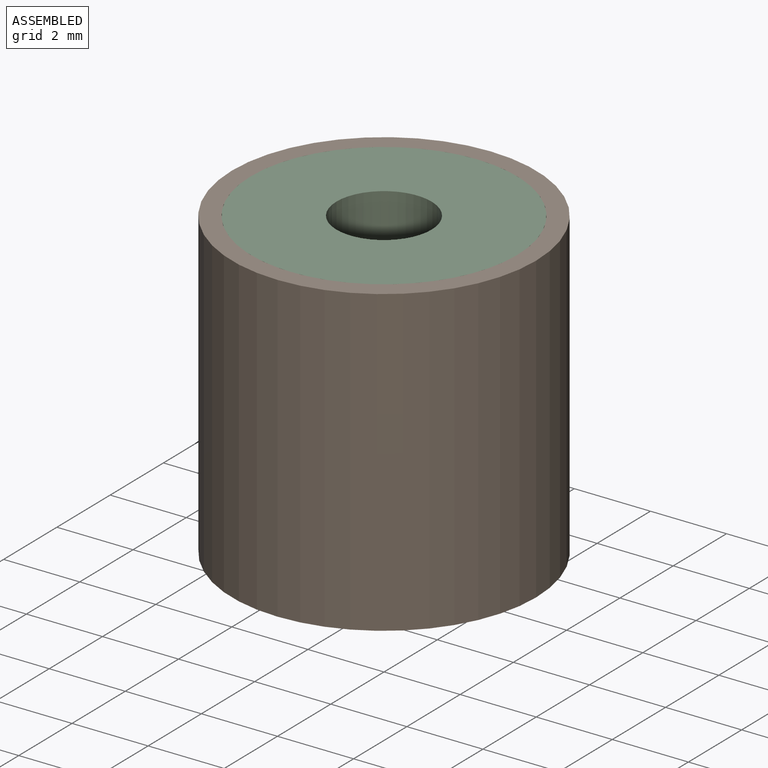
[diagram: assembled view]
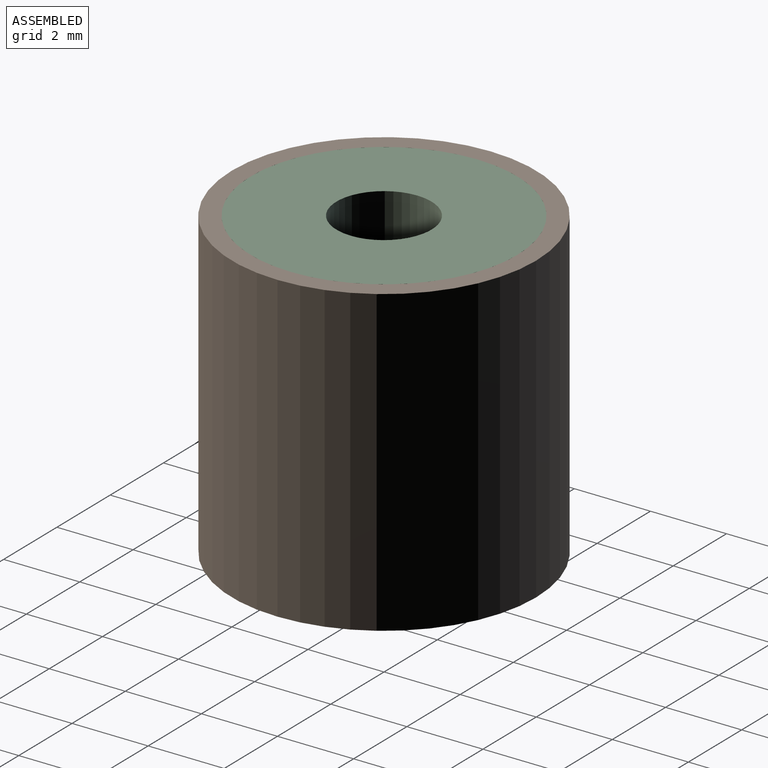
[diagram: assembled view, second angle]
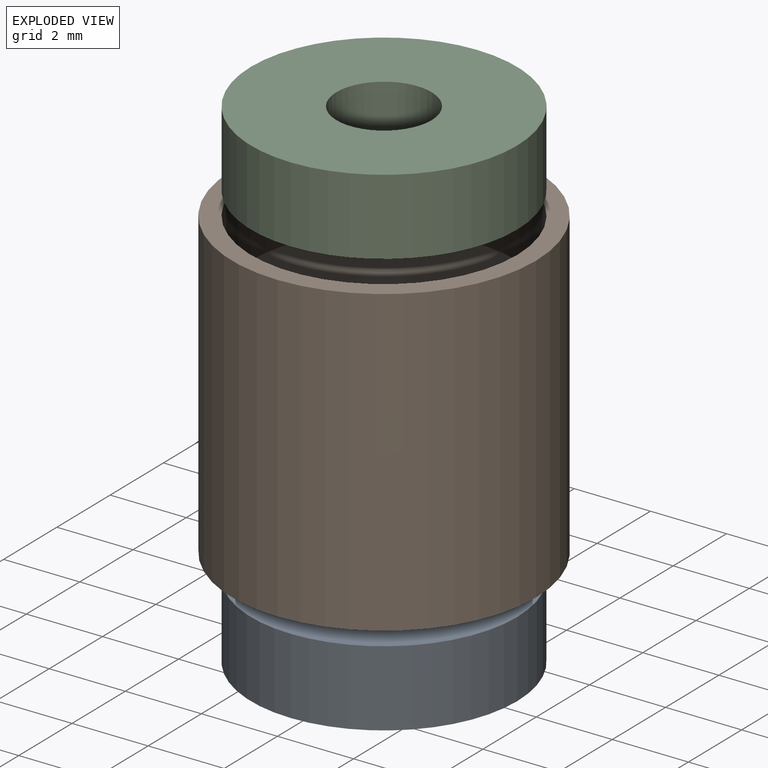
[diagram: exploded view]
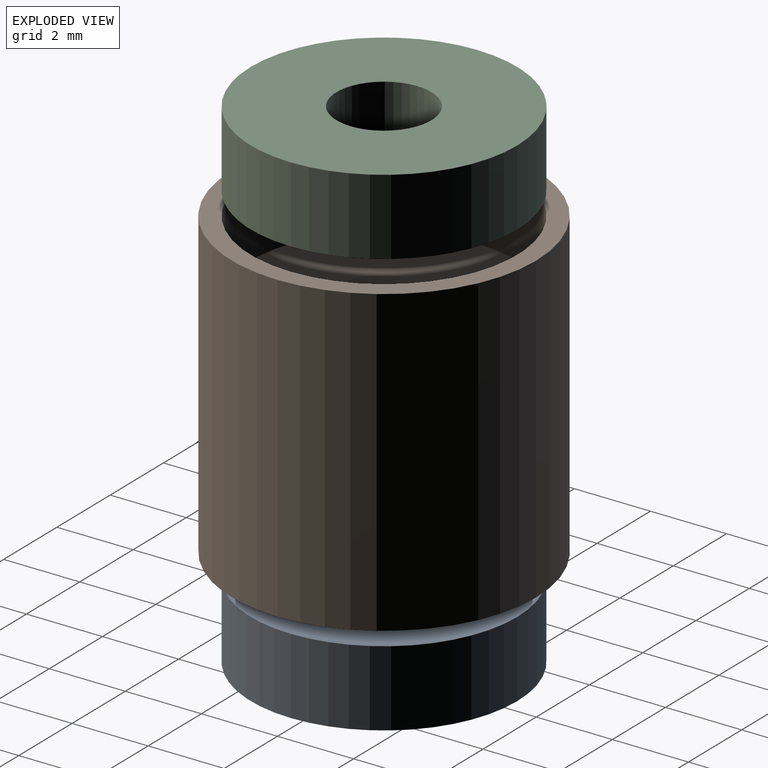
[diagram: exploded view, second angle]
ASSEMBLY  parts=3 mates=2
PART A: 4 faces, bbox 7x7x2 mm
  f0: cylinder r=3.5mm len=7mm, axis (0,0,1), area 44mm2, adj f1,f2
  f1: plane 7x7mm, normal (0,0,-1), area 33.6mm2, adj f0,f3
  f2: plane 7x7mm, normal (0,0,1), area 33.6mm2, adj f0,f3
  f3: cylinder r=1.25mm len=2.5mm, axis (0,0,-1), area 15.7mm2, adj f1,f2
PART B: 9 faces, bbox 8x8x8 mm
  f0: cylinder r=4mm len=8mm, axis (0,0,-1), area 201.1mm2, adj f1,f2
  f1: plane 8x8mm, normal (0,0,1), area 11.8mm2, adj f0,f3
  f2: plane 8x8mm, normal (0,0,-1), area 11.8mm2, adj f0,f5
  f3: cylinder r=3.5mm len=7mm, axis (0,0,1), area 44mm2, adj f1,f4
  f4: plane 7x7mm, normal (0,0,1), area 33.6mm2, adj f3,f7
  f5: cylinder r=3.5mm len=7mm, axis (0,0,-1), area 44mm2, adj f2,f6
  f6: plane 7x7mm, normal (0,0,-1), area 33.6mm2, adj f5,f8
  f7: cone r=0mm half-angle=59deg, axis (0,0,1), area 5.7mm2, adj f4
  f8: cone r=0mm half-angle=59deg, axis (0,0,-1), area 5.7mm2, adj f6
PART C: 4 faces, bbox 7x7x2 mm
  f0: cylinder r=3.5mm len=7mm, axis (0,0,-1), area 44mm2, adj f1,f2
  f1: plane 7x7mm, normal (0,0,1), area 33.6mm2, adj f0,f3
  f2: plane 7x7mm, normal (0,0,-1), area 33.6mm2, adj f0,f3
  f3: cylinder r=1.25mm len=2.5mm, axis (0,0,1), area 15.7mm2, adj f1,f2
PLACE A at identity
PLACE B at identity
PLACE C at identity
MATE fastened A.f0 <-> B.f5  axis (0,0,1) through (0,0,2)mm
MATE fastened C.f0 <-> B.f0  axis (0,0,-1) through (0,0,6)mm
